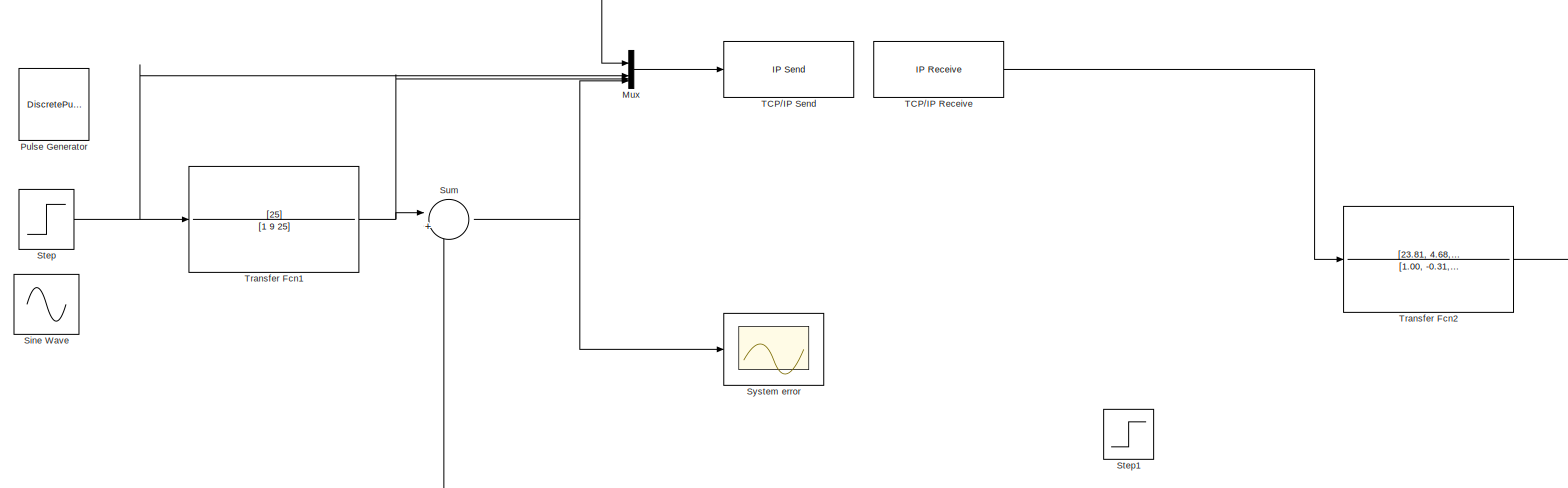
[diagram: root canvas - part 1/1, most of the canvas]
MODEL slx_cbfb5bbe96a4
KIND model
CONFIG AbsTol = auto
CONFIG EnableMultiTasking = off
CONFIG FixedStep = auto
CONFIG MaxStep = auto
CONFIG MinStep = auto
CONFIG RelTol = 1e-3
CONFIG SampleTimeConstraint = Unconstrained
CONFIG SolverName = VariableStepAuto
CONFIG StartTime = 0
CONFIG StopTime = 40.0
BLOCK [Mux] Mux
  DisplayOption = bar
BLOCK [DiscretePulseGenerator] Pulse Generator
  Amplitude = 3
  Period = 10
  PulseType = Time based
  PulseWidth = 50
BLOCK [Sin] Sine Wave
  Amplitude = 3
  Frequency = 4
  SampleTime = 0
BLOCK [Step] Step
  Before = 1
  SampleTime = 0
BLOCK [Step] Step1
  After = 100
  Before = 100
  SampleTime = 0
BLOCK [Sum] Sum
  Inputs = |+-
BLOCK [Scope] System error
  Floating = off
  NumInputPorts = 1
  ScopeSpecificationString = Simulink.scopes.TimeScopeBlockCfg('CurrentConfiguration', extmgr.ConfigurationSet(extmgr.Configuration('Core','General UI',true),extmgr.Configuration('Core','Source UI',true),extmgr.Configuration('Sources','WiredSimulink',true),extmgr.Configuration('Visuals','Time Domain',true,'SerializedDisplays',{struct('MinYLimReal','-0.51305','MaxYLimReal','0.30982','YLabelReal','','MinYLimMag','0.00000','MaxY...<+1352ch>
BLOCK [Reference] TCP//IP Receive  REF=instrumentlib/TCP//IP Receive
  SourceBlock = instrumentlib/TCP//IP Receive
  SourceType = instrument.system.TCPIPReceive
BLOCK [Reference] TCP//IP Send  REF=instrumentlib/TCP//IP Send
  SourceBlock = instrumentlib/TCP//IP Send
  SourceType = instrument.system.TCPIPSend
BLOCK [TransferFcn] Transfer Fcn1
  ContinuousStateAttributes = 'Reference_Model'
  Denominator = [1 9 25]
  Numerator = [25]
BLOCK [TransferFcn] Transfer Fcn2
  ContinuousStateAttributes = 'Reference_Model'
  Denominator = [1.00, -0.31, -0.04, 12.02, 1.17]
  Numerator = [23.81, 4.68, 0.23]
LINE Mux:1 -> TCP//IP Send:1
NET Step:1 -> Mux:2, Transfer Fcn1:1
NET Sum:1 -> Mux:4, System error:1
LINE TCP//IP Receive:1 -> Transfer Fcn2:1
NET Transfer Fcn1:1 -> Mux:3, Sum:1
NET Transfer Fcn2:1 -> Mux:1, Sum:2
note: NET lines group one-source signal fan-out (src -> all destinations, sorted); 1:1 wires keep LINE
